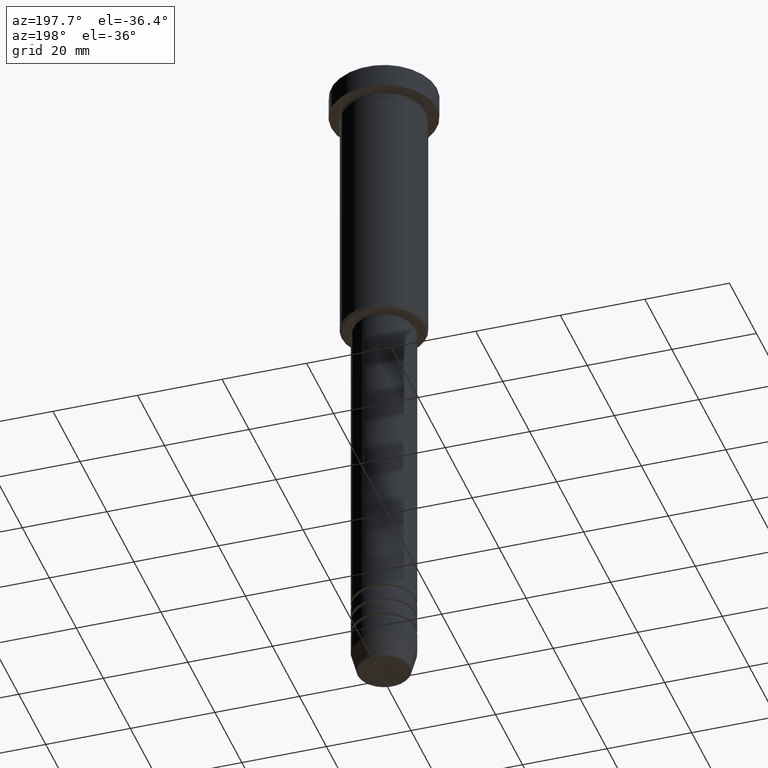
[diagram: clean part render]
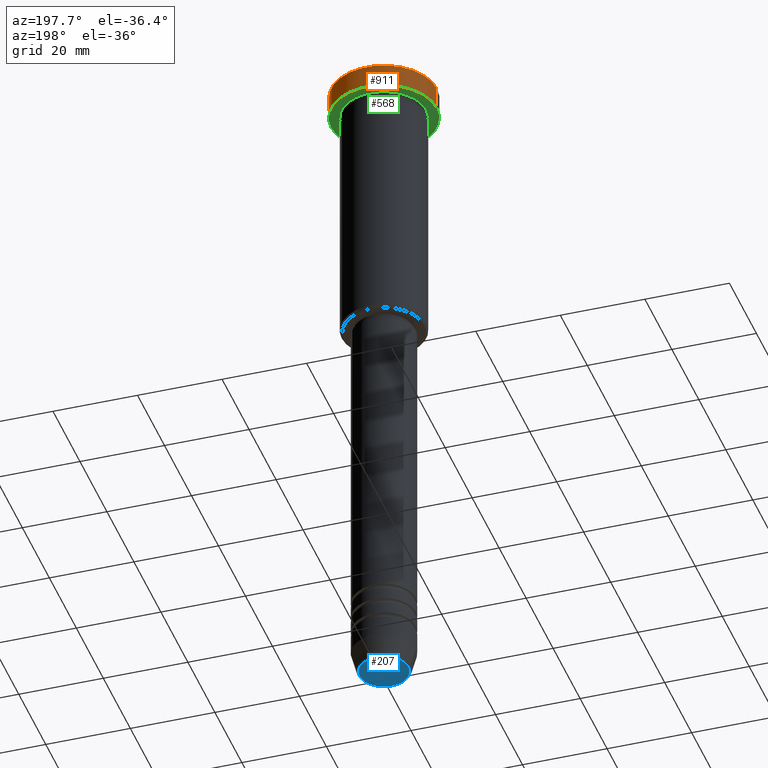
[diagram: same view with three faces highlighted in distinct colors, each labeled with its STEP entity id]
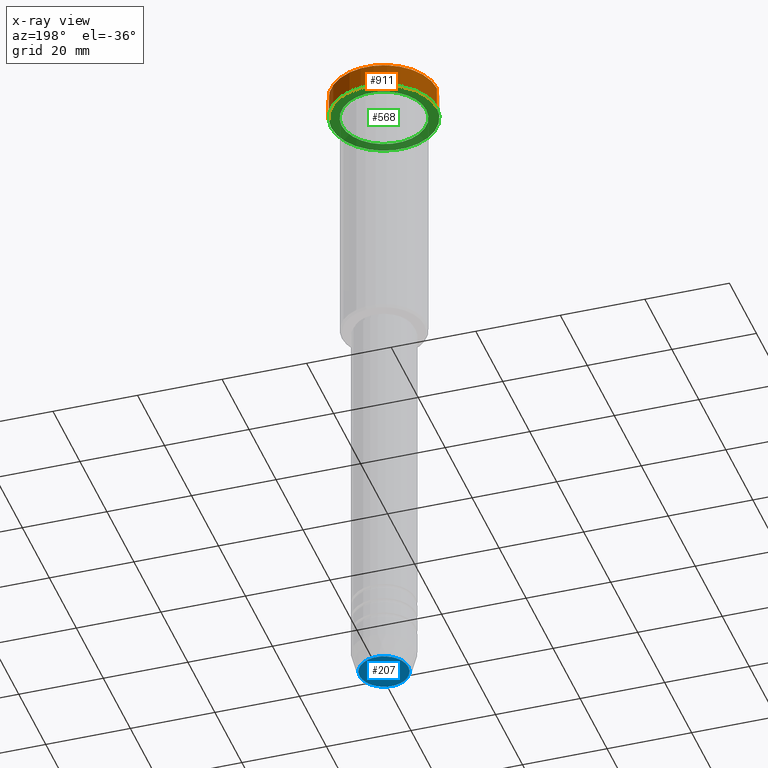
[diagram: x-ray of the same camera — body ghosted, the three highlighted faces saturated]
A machine part, auxiliary view with three faces highlighted in distinct colors.
The next image is the same camera in x-ray (body ghosted, the three faces saturated) — at least one of them is partly hidden behind the body in this view.
Their STEP definitions:

[orange] entity #911 — the highlighted cylindrical surface (partial cylindrical patch) has radius 12.5 mm, axis along (-0, -0, 1).
#12 = DIRECTION ( 'NONE',  ( 1.000000000000000000, 0.000000000000000000, 0.000000000000000000 ) ) ;
#27 = DIRECTION ( 'NONE',  ( -0.000000000000000000, -0.000000000000000000, 1.000000000000000000 ) ) ;
#28 = CIRCLE ( 'NONE', #562, 12.50000000000000000 ) ;
#56 = DIRECTION ( 'NONE',  ( 1.000000000000000000, 0.000000000000000000, 0.000000000000000000 ) ) ;
#140 = VERTEX_POINT ( 'NONE', #262 ) ;
#151 = DIRECTION ( 'NONE',  ( -0.000000000000000000, -0.000000000000000000, 1.000000000000000000 ) ) ;
#163 = ORIENTED_EDGE ( 'NONE', *, *, #1075, .T. ) ;
#179 = VERTEX_POINT ( 'NONE', #738 ) ;
#214 = CARTESIAN_POINT ( 'NONE',  ( 0.000000000000000000, 0.000000000000000000, -0.5000000000000056621 ) ) ;
#252 = LINE ( 'NONE', #629, #438 ) ;
#262 = CARTESIAN_POINT ( 'NONE',  ( 12.50000000000000000, 0.000000000000000000, -0.5000000000000056621 ) ) ;
#265 = CARTESIAN_POINT ( 'NONE',  ( 0.000000000000000000, 0.000000000000000000, -5.999999999999996447 ) ) ;
#278 = EDGE_LOOP ( 'NONE', ( #163, #673, #909, #1070 ) ) ;
#349 = DIRECTION ( 'NONE',  ( -0.000000000000000000, -0.000000000000000000, 1.000000000000000000 ) ) ;
#386 = CARTESIAN_POINT ( 'NONE',  ( -12.50000000000000000, 1.530808498934191521E-15, -5.999999999999996447 ) ) ;
#387 = VERTEX_POINT ( 'NONE', #416 ) ;
#402 = DIRECTION ( 'NONE',  ( 0.000000000000000000, 0.000000000000000000, -1.000000000000000000 ) ) ;
#416 = CARTESIAN_POINT ( 'NONE',  ( -12.50000000000000000, 1.530808498934191521E-15, -0.5000000000000056621 ) ) ;
#420 = CIRCLE ( 'NONE', #776, 12.50000000000000000 ) ;
#437 = VECTOR ( 'NONE', #27, 1000.000000000000000 ) ;
#438 = VECTOR ( 'NONE', #151, 1000.000000000000000 ) ;
#562 = AXIS2_PLACEMENT_3D ( 'NONE', #265, #1001, #12 ) ;
#595 = DIRECTION ( 'NONE',  ( 1.000000000000000000, 0.000000000000000000, 0.000000000000000000 ) ) ;
#629 = CARTESIAN_POINT ( 'NONE',  ( -12.50000000000000000, 1.530808498934191521E-15, 0.000000000000000000 ) ) ;
#641 = AXIS2_PLACEMENT_3D ( 'NONE', #1157, #349, #56 ) ;
#673 = ORIENTED_EDGE ( 'NONE', *, *, #963, .T. ) ;
#694 = VERTEX_POINT ( 'NONE', #386 ) ;
#725 = EDGE_CURVE ( 'NONE', #387, #140, #420, .T. ) ;
#738 = CARTESIAN_POINT ( 'NONE',  ( 12.50000000000000000, 0.000000000000000000, -5.999999999999996447 ) ) ;
#776 = AXIS2_PLACEMENT_3D ( 'NONE', #214, #402, #595 ) ;
#780 = LINE ( 'NONE', #964, #437 ) ;
#786 = EDGE_CURVE ( 'NONE', #179, #140, #780, .T. ) ;
#803 = CYLINDRICAL_SURFACE ( 'NONE', #641, 12.50000000000000000 ) ;
#895 = FACE_OUTER_BOUND ( 'NONE', #278, .T. ) ;
#909 = ORIENTED_EDGE ( 'NONE', *, *, #725, .T. ) ;
#911 = ADVANCED_FACE ( 'NONE', ( #895 ), #803, .T. ) ;
#963 = EDGE_CURVE ( 'NONE', #694, #387, #252, .T. ) ;
#964 = CARTESIAN_POINT ( 'NONE',  ( 12.50000000000000000, 0.000000000000000000, 0.000000000000000000 ) ) ;
#1001 = DIRECTION ( 'NONE',  ( -0.000000000000000000, -0.000000000000000000, 1.000000000000000000 ) ) ;
#1070 = ORIENTED_EDGE ( 'NONE', *, *, #786, .F. ) ;
#1075 = EDGE_CURVE ( 'NONE', #179, #694, #28, .T. ) ;
#1157 = CARTESIAN_POINT ( 'NONE',  ( 0.000000000000000000, 0.000000000000000000, 0.000000000000000000 ) ) ;

[blue] entity #207 — the highlighted planar face has unit normal (0, -0, 1).
#42 = CIRCLE ( 'NONE', #889, 5.776590543854905668 ) ;
#134 = DIRECTION ( 'NONE',  ( 1.000000000000000000, 0.000000000000000000, 0.000000000000000000 ) ) ;
#166 = CARTESIAN_POINT ( 'NONE',  ( 0.000000000000000000, 0.000000000000000000, -161.0000000000000284 ) ) ;
#172 = FACE_OUTER_BOUND ( 'NONE', #475, .T. ) ;
#185 = EDGE_CURVE ( 'NONE', #296, #462, #42, .T. ) ;
#207 = ADVANCED_FACE ( 'NONE', ( #172 ), #289, .F. ) ;
#255 = ORIENTED_EDGE ( 'NONE', *, *, #185, .T. ) ;
#289 = PLANE ( 'NONE',  #449 ) ;
#296 = VERTEX_POINT ( 'NONE', #490 ) ;
#362 = DIRECTION ( 'NONE',  ( 1.000000000000000000, 0.000000000000000000, 0.000000000000000000 ) ) ;
#366 = CARTESIAN_POINT ( 'NONE',  ( 0.000000000000000000, 0.000000000000000000, -161.0000000000000284 ) ) ;
#391 = EDGE_CURVE ( 'NONE', #462, #296, #966, .T. ) ;
#449 = AXIS2_PLACEMENT_3D ( 'NONE', #637, #645, #1002 ) ;
#460 = DIRECTION ( 'NONE',  ( 0.000000000000000000, 0.000000000000000000, -1.000000000000000000 ) ) ;
#462 = VERTEX_POINT ( 'NONE', #711 ) ;
#475 = EDGE_LOOP ( 'NONE', ( #255, #692 ) ) ;
#490 = CARTESIAN_POINT ( 'NONE',  ( 5.776590543854905668, 0.000000000000000000, -161.0000000000000284 ) ) ;
#637 = CARTESIAN_POINT ( 'NONE',  ( 0.000000000000000000, 0.000000000000000000, -161.0000000000000284 ) ) ;
#645 = DIRECTION ( 'NONE',  ( 0.000000000000000000, -0.000000000000000000, 1.000000000000000000 ) ) ;
#692 = ORIENTED_EDGE ( 'NONE', *, *, #391, .T. ) ;
#711 = CARTESIAN_POINT ( 'NONE',  ( -5.776590543854905668, 7.370012612361447573E-16, -161.0000000000000284 ) ) ;
#775 = DIRECTION ( 'NONE',  ( 0.000000000000000000, 0.000000000000000000, -1.000000000000000000 ) ) ;
#889 = AXIS2_PLACEMENT_3D ( 'NONE', #366, #460, #362 ) ;
#966 = CIRCLE ( 'NONE', #1074, 5.776590543854905668 ) ;
#1002 = DIRECTION ( 'NONE',  ( 1.000000000000000000, 0.000000000000000000, 0.000000000000000000 ) ) ;
#1074 = AXIS2_PLACEMENT_3D ( 'NONE', #166, #775, #134 ) ;

[green] entity #568 — the highlighted planar face has unit normal (0, 0, -1).
#12 = DIRECTION ( 'NONE',  ( 1.000000000000000000, 0.000000000000000000, 0.000000000000000000 ) ) ;
#28 = CIRCLE ( 'NONE', #562, 12.50000000000000000 ) ;
#69 = DIRECTION ( 'NONE',  ( 1.000000000000000000, 0.000000000000000000, 0.000000000000000000 ) ) ;
#142 = AXIS2_PLACEMENT_3D ( 'NONE', #191, #1183, #845 ) ;
#167 = CARTESIAN_POINT ( 'NONE',  ( 0.000000000000000000, 0.000000000000000000, -5.999999999999996447 ) ) ;
#179 = VERTEX_POINT ( 'NONE', #738 ) ;
#187 = ORIENTED_EDGE ( 'NONE', *, *, #399, .T. ) ;
#191 = CARTESIAN_POINT ( 'NONE',  ( 0.000000000000000000, 0.000000000000000000, -5.999999999999996447 ) ) ;
#206 = AXIS2_PLACEMENT_3D ( 'NONE', #167, #899, #69 ) ;
#209 = FACE_BOUND ( 'NONE', #846, .T. ) ;
#241 = CARTESIAN_POINT ( 'NONE',  ( 0.000000000000000000, 0.000000000000000000, -5.999999999999996447 ) ) ;
#265 = CARTESIAN_POINT ( 'NONE',  ( 0.000000000000000000, 0.000000000000000000, -5.999999999999996447 ) ) ;
#269 = FACE_OUTER_BOUND ( 'NONE', #935, .T. ) ;
#287 = VERTEX_POINT ( 'NONE', #1038 ) ;
#326 = CIRCLE ( 'NONE', #206, 12.50000000000000000 ) ;
#335 = CARTESIAN_POINT ( 'NONE',  ( 10.00000000000000000, 1.224646799147353256E-15, -5.999999999999996447 ) ) ;
#386 = CARTESIAN_POINT ( 'NONE',  ( -12.50000000000000000, 1.530808498934191521E-15, -5.999999999999996447 ) ) ;
#399 = EDGE_CURVE ( 'NONE', #287, #448, #1022, .T. ) ;
#413 = ORIENTED_EDGE ( 'NONE', *, *, #549, .T. ) ;
#448 = VERTEX_POINT ( 'NONE', #335 ) ;
#549 = EDGE_CURVE ( 'NONE', #448, #287, #659, .T. ) ;
#553 = PLANE ( 'NONE',  #639 ) ;
#560 = AXIS2_PLACEMENT_3D ( 'NONE', #241, #1139, #1056 ) ;
#562 = AXIS2_PLACEMENT_3D ( 'NONE', #265, #1001, #12 ) ;
#568 = ADVANCED_FACE ( 'NONE', ( #209, #269 ), #553, .T. ) ;
#633 = ORIENTED_EDGE ( 'NONE', *, *, #1007, .F. ) ;
#639 = AXIS2_PLACEMENT_3D ( 'NONE', #740, #1176, #1104 ) ;
#659 = CIRCLE ( 'NONE', #142, 10.00000000000000000 ) ;
#694 = VERTEX_POINT ( 'NONE', #386 ) ;
#738 = CARTESIAN_POINT ( 'NONE',  ( 12.50000000000000000, 0.000000000000000000, -5.999999999999996447 ) ) ;
#740 = CARTESIAN_POINT ( 'NONE',  ( 0.000000000000000000, 12.50000000000000000, -5.999999999999996447 ) ) ;
#845 = DIRECTION ( 'NONE',  ( -1.000000000000000000, 0.000000000000000000, 0.000000000000000000 ) ) ;
#846 = EDGE_LOOP ( 'NONE', ( #187, #413 ) ) ;
#899 = DIRECTION ( 'NONE',  ( -0.000000000000000000, -0.000000000000000000, 1.000000000000000000 ) ) ;
#926 = ORIENTED_EDGE ( 'NONE', *, *, #1075, .F. ) ;
#935 = EDGE_LOOP ( 'NONE', ( #926, #633 ) ) ;
#1001 = DIRECTION ( 'NONE',  ( -0.000000000000000000, -0.000000000000000000, 1.000000000000000000 ) ) ;
#1007 = EDGE_CURVE ( 'NONE', #694, #179, #326, .T. ) ;
#1022 = CIRCLE ( 'NONE', #560, 10.00000000000000000 ) ;
#1038 = CARTESIAN_POINT ( 'NONE',  ( -10.00000000000000000, 0.000000000000000000, -5.999999999999996447 ) ) ;
#1056 = DIRECTION ( 'NONE',  ( -1.000000000000000000, 0.000000000000000000, 0.000000000000000000 ) ) ;
#1075 = EDGE_CURVE ( 'NONE', #179, #694, #28, .T. ) ;
#1104 = DIRECTION ( 'NONE',  ( -1.000000000000000000, 0.000000000000000000, -0.000000000000000000 ) ) ;
#1139 = DIRECTION ( 'NONE',  ( -0.000000000000000000, -0.000000000000000000, 1.000000000000000000 ) ) ;
#1176 = DIRECTION ( 'NONE',  ( 0.000000000000000000, 0.000000000000000000, -1.000000000000000000 ) ) ;
#1183 = DIRECTION ( 'NONE',  ( -0.000000000000000000, -0.000000000000000000, 1.000000000000000000 ) ) ;